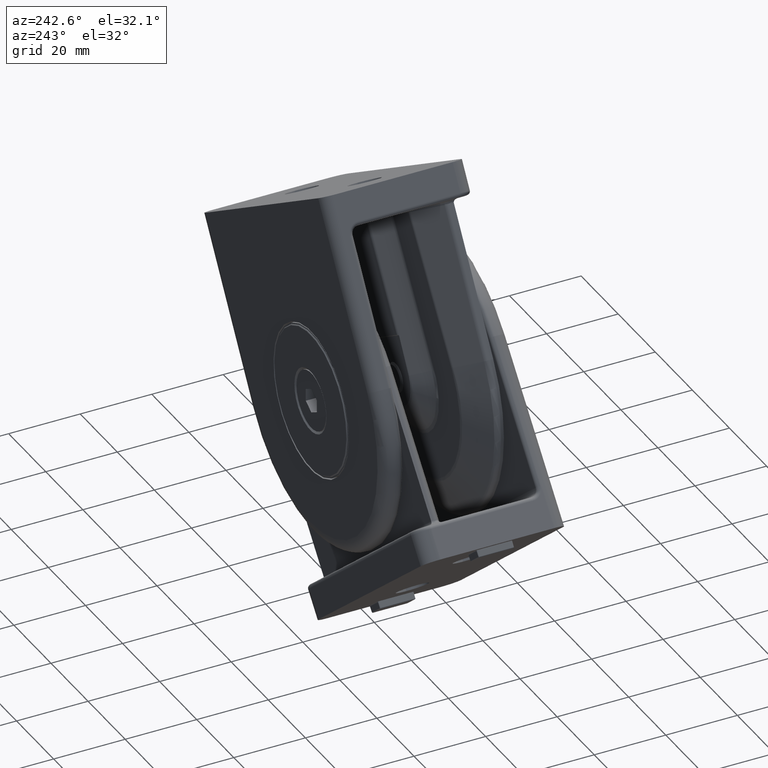
[diagram: clean part render]
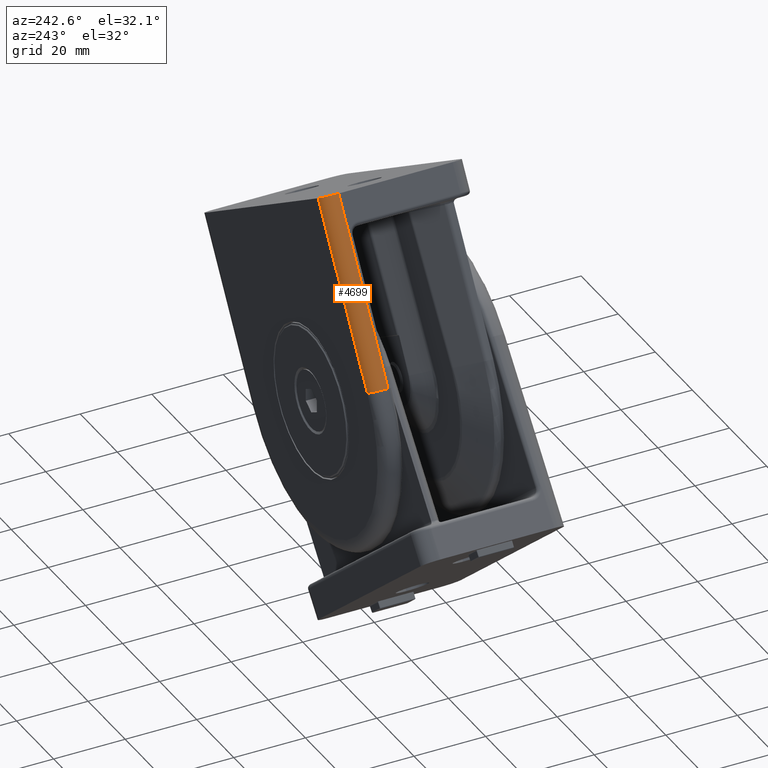
[diagram: same view with one face highlighted and labeled with its STEP entity id]
A machine part, auxiliary view. The second image highlights one B-rep face of the part: STEP entity #4699.
In plain terms, the highlighted cylindrical surface (edge-blend (fillet) strip) has radius 4 mm, axis along (-0.5311, 0, -0.8473).
Its self-contained STEP definition (entity closure, byte-faithful):
#344=LINE('',#8152,#649);
#384=LINE('',#8332,#689);
#649=VECTOR('',#6039,50.);
#689=VECTOR('',#6151,50.);
#916=CYLINDRICAL_SURFACE('',#5170,4.);
#1229=FACE_OUTER_BOUND('',#1588,.T.);
#1588=EDGE_LOOP('',(#3665,#3666,#3667,#3668));
#1881=CIRCLE('',#5038,4.);
#1954=CIRCLE('',#5171,4.);
#2179=VERTEX_POINT('',#7483);
#2181=VERTEX_POINT('',#7486);
#2290=VERTEX_POINT('',#8150);
#2326=VERTEX_POINT('',#8330);
#2634=EDGE_CURVE('',#2181,#2179,#1881,.T.);
#2755=EDGE_CURVE('',#2290,#2179,#344,.T.);
#2813=EDGE_CURVE('',#2290,#2326,#1954,.T.);
#2814=EDGE_CURVE('',#2326,#2181,#384,.T.);
#3665=ORIENTED_EDGE('',*,*,#2634,.T.);
#3666=ORIENTED_EDGE('',*,*,#2755,.F.);
#3667=ORIENTED_EDGE('',*,*,#2813,.T.);
#3668=ORIENTED_EDGE('',*,*,#2814,.T.);
#4699=ADVANCED_FACE('',(#1229),#916,.T.);
#5038=AXIS2_PLACEMENT_3D('',#7487,#5801,#5802);
#5170=AXIS2_PLACEMENT_3D('',#8329,#6147,#6148);
#5171=AXIS2_PLACEMENT_3D('',#8331,#6149,#6150);
#5801=DIRECTION('center_axis',(0.,0.,1.));
#5802=DIRECTION('ref_axis',(-1.,0.,0.));
#6039=DIRECTION('',(0.,0.,-1.));
#6147=DIRECTION('center_axis',(0.,0.,-1.));
#6148=DIRECTION('ref_axis',(-1.,0.,0.));
#6149=DIRECTION('center_axis',(0.,0.,-1.));
#6150=DIRECTION('ref_axis',(-1.,0.,0.));
#6151=DIRECTION('',(0.,0.,-1.));
#7483=CARTESIAN_POINT('',(-39.8,15.9,-41.));
#7486=CARTESIAN_POINT('',(-35.8,19.9,-41.));
#7487=CARTESIAN_POINT('Origin',(-35.8,15.9,-41.));
#8150=CARTESIAN_POINT('',(-39.8,15.9,9.));
#8152=CARTESIAN_POINT('',(-39.8,15.9,0.));
#8329=CARTESIAN_POINT('Origin',(-35.8,15.9,0.));
#8330=CARTESIAN_POINT('',(-35.8,19.9,9.));
#8331=CARTESIAN_POINT('Origin',(-35.8,15.9,9.));
#8332=CARTESIAN_POINT('',(-35.8,19.9,0.));